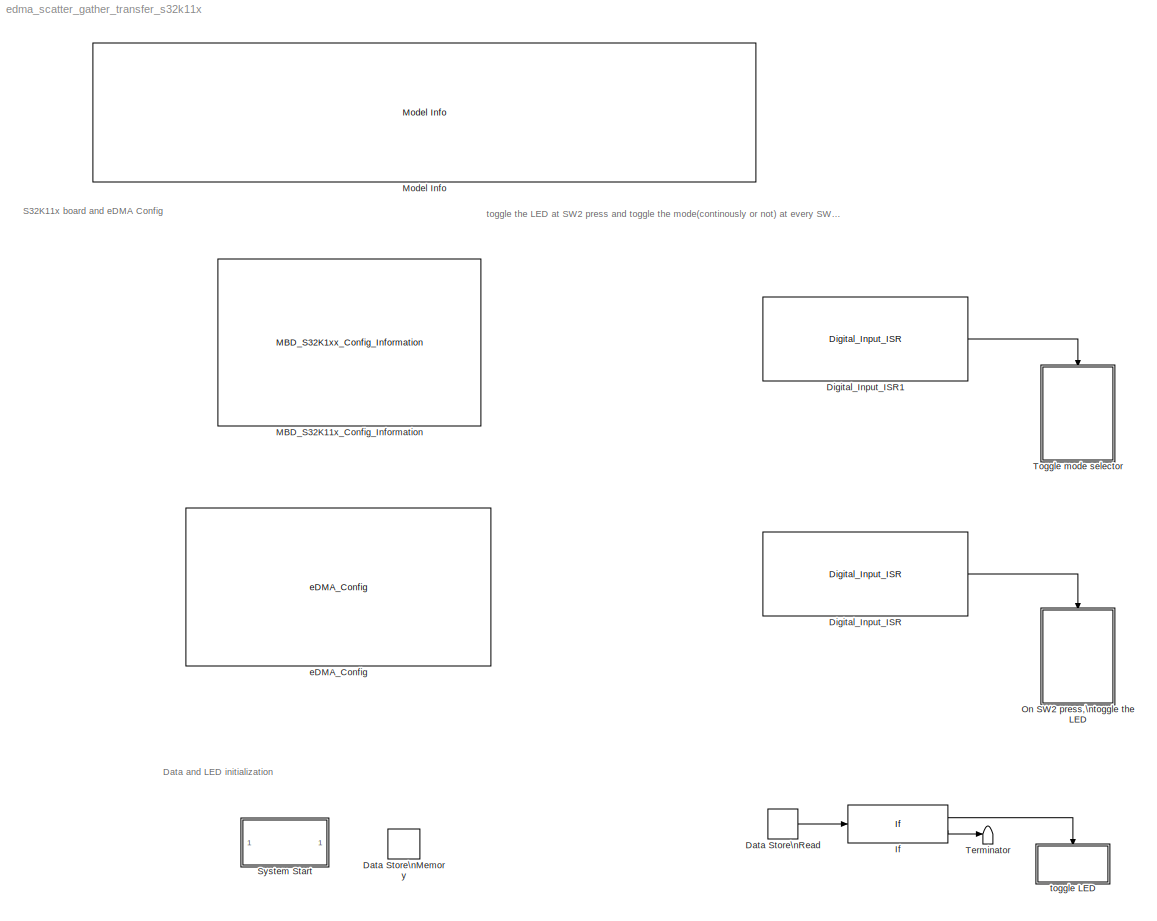
MODEL edma_scatter_gather_transfer_s32k11x
KIND model
CONFIG InitFcn = mbd_s32k_consistency_checks(bdroot(gcs));
BLOCK [DataStoreMemory] Data Store\nMemory
  DataStoreName = mode
  ReadBeforeWriteMsg = warning
  SID = 32
  ShowAdditionalParam = off
  WriteAfterReadMsg = warning
  WriteAfterWriteMsg = warning
BLOCK [DataStoreRead] Data Store\nRead
  DataStoreName = mode
  Ports = [0, 1]
  SID = 38
BLOCK [Reference] Digital_Input_ISR  REF=mbd_s32k1xx_ec_toolbox/GPIO Blocks/Digital_Input_ISR
  Ports = [0, 1]
  SID = 22
  SourceBlock = mbd_s32k1xx_ec_toolbox/GPIO Blocks/Digital_Input_ISR
  SourceType = gpi_s32k_isr
  gpio_pin = PTD3: [PTD3 | Port D I/O]
  irqc = on rising-edge
  prio = 3
BLOCK [Reference] Digital_Input_ISR1  REF=mbd_s32k1xx_ec_toolbox/GPIO Blocks/Digital_Input_ISR
  Ports = [0, 1]
  SID = 28
  SourceBlock = mbd_s32k1xx_ec_toolbox/GPIO Blocks/Digital_Input_ISR
  SourceType = gpi_s32k_isr
  gpio_pin = PTD5: [PTD5 | Port D I/O]
  irqc = on rising-edge
  prio = 3
BLOCK [If] If
  Ports = [1, 2]
  SID = 33
BLOCK [Reference] MBD_S32K11x_Config_Information  REF=mbd_s32k1xx_ec_toolbox/MBD_S32K1xx_Config_Information
  ADC_PcrCheckEnDis = on
  AMMCLIB_PcrCheckEnDis = on
  CMP_PcrCheckEnDis = on
  CSEc_PcrCheckEnDis = on
  ConfigParams_PcrCheckEnDis = on
  FM_PcrCheckEnDis = on
  FTM_Dual_Edge_Inputs_PcrCheckEnDis = on
  FTM_Hall_Sensor_Inputs_PcrCheckEnDis = on
  FTM_Input_Edge_Inputs_PcrCheckEnDis = on
  FTM_PWM_PcrCheckEnDis = on
  FTM_Quadrature_Inputs_PcrCheckEnDis = on
  FlexCAN_PcrCheckEnDis = on
  FlexIO_PcrCheckEnDis = on
  GPIO_InputPcrCheckEnDis = on
  GPIO_OutputPcrCheckEnDis = on
  LIN_PcrCheckEnDis = on
  LPI2C_PcrCheckEnDis = on
  LPSPI_PcrCheckEnDis = on
  LPTMR_PcrCheckEnDis = on
  LPUART_PcrCheckEnDis = on
  ModelRef_PcrCheckEnDis = on
  PDB0_PcrCheckEnDis = on
  PIT_PcrCheckEnDis = on
  Ports = []
  Profile_PcrCheckEnDis = on
  RTC_PcrCheckEnDis = on
  SBC_PcrCheckEnDis = on
  SID = 64
  SourceBlock = mbd_s32k1xx_ec_toolbox/MBD_S32K1xx_Config_Information
  SourceType = MBDTBX_EC_S32K
  WDOG_PcrCheckEnDis = on
  config_params = []
  disp_str = Target : S32K144-64KB_SRAM\nPackage : 100-pin\nSystem clock : 80 MHz\nXTAL clock : External 8 MHz\nCompiler : IAR\nTarget Type : FLASH\nDownload Code after build : off\nStep Tick Interrupt Priority : 15
  ds_import_enable = on
  eDMA_PcrCheckEnDis = on
  gcc_target_assemble_opts = -mcpu=cortex-m0plus -mthumb -g
  gcc_target_compile_opts = -mcpu=cortex-m0plus -mthumb -O1 -g -gstrict-dwarf
  gcc_target_default_lcf = on
  gcc_target_link_opts = -mcpu=cortex-m0plus -mthumb
  gcc_target_user_lcf = S32K116_17_flash.ld
  ghs_target_assemble_opts = -mcpu=cortexm0plus -mthumb -fsoft --gnu_asm
  ghs_target_compile_opts = -mcpu=cortexm0plus -mthumb -fsoft -Ogeneral -Wundef -Wimplicit-int -Wshadow -Wtrigraphs --no_commons --gnu_asm -gnu99 -gdwarf-2 -G
  ghs_target_default_lcf = on
  ghs_target_link_opts = -mcpu=cortexm0plus -mthumb -fsoft
  ghs_target_user_lcf = S32K116_17_flash.ld
  iar_target_assemble_opts = --thumb
  iar_target_compile_opts = --thumb -Ol -e --debug --dlib_config normal
  iar_target_default_lcf = on
  iar_target_link_opts = --no_exceptions --vfe --inline
  iar_target_user_lcf = S32K116_17_flash.icf
  mbdt_ver = 0
  mcu_steptick_prio = 3
  mcu_steptick_timer = LPIT Channel 0
  mcu_system_clock_freq = 40
  mcu_target_name = S32K116
  mcu_target_package = 48-LQFP
  mcu_target_sram_size = 17KB
  mcu_xtal_freq = External 40
  pil_download_enable = off
  pil_download_rate = 57600
  pil_opensda_drive = Custom
  pil_opensda_drive_custom = D
  pil_uart_instance = 0
  pil_uart_rx = PTA2: [LPUART0_RX | Receive]
  pil_uart_tx = PTA3: [LPUART0_TX | Transmit]
  rbl_com_port = Custom
  rbl_com_port_custom = COM1
  rbl_download_enable = on
  rbl_download_interface = OpenSDA
  rbl_restart_request = off
  rbl_start_delay = 5000
  target_compiler = GCC
  target_memory = FLASH
BLOCK [Reference] Model Info  REF=simulink/Model-Wide\nUtilities/Model Info
  DisplayStringWithTags = Model Name: %<ModelName>\n\nDescription: %<Description>
  Frame = off
  HorizontalTextAlignment = Left
  LeftAlignmentValue = 0.02
  MaskDisplayString = Model Name: edma_scatter_gather_transfer_s32k11x\\n\\nDescription: Press SW2 to trigger an eDMA transfer to PTOR register; this toggles PTE8,\\nthus blinking the blue LED.\\n\\nPress SW3 to trigger eDMA transfer continuously (at every step). Pressing it again will stop this process.\\n\\nVerification:\\nLED blink (blue) at every SW2 press.\\nLED blinks continuously at 0.5s after pressing SW3.
  Ports = []
  SID = 59
  SourceBlock = simulink/Model-Wide\nUtilities/Model Info
  SourceProductBaseCode = SL
  SourceProductName = Simulink
  SourceType = CMBlock
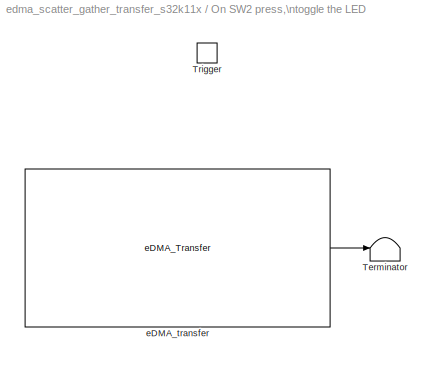
BLOCK [SubSystem] On SW2 press,\ntoggle the LED
  Ports = [0, 0, 0, 1]
  RequestExecContextInheritance = off
  SID = 23
  Variant = off
BLOCK [Terminator] On SW2 press,\ntoggle the LED/Terminator
  SID = 57
BLOCK [TriggerPort] On SW2 press,\ntoggle the LED/Trigger
  PortDimensions = 1
  Ports = []
  SID = 24
  StatesWhenEnabling = held
  TriggerType = function-call
  VariantControl = Variant
BLOCK [Reference] On SW2 press,\ntoggle the LED/eDMA_transfer  REF=mbd_s32k1xx_ec_toolbox/Core and System Blocks/DMA Blocks/eDMA_Transfer
  Ports = [0, 1]
  SID = 3
  SourceBlock = mbd_s32k1xx_ec_toolbox/Core and System Blocks/DMA Blocks/eDMA_Transfer
  SourceType = edma_s32k_transfer
  bytes_on_each_req = 4
  channel = 0
  dest_list = {0x0,0x0}
  dest_list_type = Select from a register list
  dest_periph1 = PTE
  dest_periph2 = ADC0
  dest_periph3 = ADC0
  dest_periph4 = ADC0
  dest_periph5 = ADC0
  dest_periph6 = ADC0
  dest_periph7 = ADC0
  dest_periph8 = ADC0
  dest_reg1 = PDOR
  dest_reg1_addr = 0x400FF100
  dest_reg1enable = on
  dest_reg1offset = 0xCh
  dest_reg2 = SC1A
  dest_reg2_addr = 0x4003B000
  dest_reg2enable = off
  dest_reg2offset = abch
  dest_reg3 = SC1A
  dest_reg3_addr = 0x4003B000
  dest_reg3enable = off
  dest_reg3offset = 0xabcd
  dest_reg4 = SC1A
  dest_reg4_addr = 0x4003B000
  dest_reg4enable = off
  dest_reg4offset = 0
  dest_reg5 = SC1A
  dest_reg5_addr = 0x4003B000
  dest_reg5enable = off
  dest_reg5offset = 0
  dest_reg6 = SC1A
  dest_reg6_addr = 0x4003B000
  dest_reg6enable = off
  dest_reg6offset = 0
  dest_reg7 = SC1A
  dest_reg7_addr = 0x4003B000
  dest_reg7enable = off
  dest_reg7offset = 0
  dest_reg8 = SC1A
  dest_reg8_addr = 0x4003B000
  dest_reg8enable = off
  dest_reg8offset = 0
  sg_struct_size = 32
  single_block_dest_type = Dest input is an address
  single_block_src_type = Src input is an address
  src_list = {256}
  src_list_type = Value list
  src_periph1 = ADC0
  src_periph2 = ADC0
  src_periph3 = ADC0
  src_periph4 = ADC0
  src_periph5 = ADC0
  src_periph6 = ADC0
  src_periph7 = ADC0
  src_periph8 = ADC0
  src_reg1 = SC1C
  src_reg1_addr = 0x4003B008
  src_reg1enable = on
  src_reg1offset = 0xABh
  src_reg2 = SC1A
  src_reg2_addr = 0x4003B000
  src_reg2enable = on
  src_reg2offset = 0
  src_reg3 = SC1A
  src_reg3_addr = 0x4003B000
  src_reg3enable = on
  src_reg3offset = 17
  src_reg4 = SC1A
  src_reg4_addr = 0x4003B000
  src_reg4enable = off
  src_reg4offset = 0
  src_reg5 = SC1A
  src_reg5_addr = 0x4003B000
  src_reg5enable = off
  src_reg5offset = 0
  src_reg6 = SC1A
  src_reg6_addr = 0x4003B000
  src_reg6enable = off
  src_reg6offset = 0
  src_reg7 = SC1A
  src_reg7_addr = 0x4003B000
  src_reg7enable = off
  src_reg7offset = 0
  src_reg8 = SC1A
  src_reg8_addr = 0x4003B000
  src_reg8enable = off
  src_reg8offset = 0
  transfer_mode = Scatter-Gather Transfer
  transfer_size = EDMA_TRANSFER_SIZE_4B
  transfer_type = EDMA_TRANSFER_MEM2PERIPH
BLOCK [SubSystem] System Start
  CopyFcn = cccopyfcn(gcb)
  OpenFcn = ccopenfcn('System Start Function')
  Ports = []
  RequestExecContextInheritance = off
  SID = 20
  Variant = off
BLOCK [Terminator] Terminator
  SID = 39
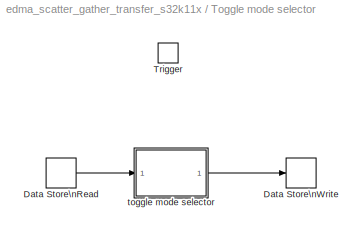
BLOCK [SubSystem] Toggle mode selector
  Ports = [0, 0, 0, 1]
  RequestExecContextInheritance = off
  SID = 41
  Variant = off
BLOCK [DataStoreRead] Toggle mode selector/Data Store\nRead
  DataStoreName = mode
  Ports = [0, 1]
  SID = 46
BLOCK [DataStoreWrite] Toggle mode selector/Data Store\nWrite
  DataStoreName = mode
  Ports = [1]
  SID = 40
BLOCK [TriggerPort] Toggle mode selector/Trigger
  PortDimensions = 1
  Ports = []
  SID = 53
  StatesWhenEnabling = held
  TriggerType = function-call
  VariantControl = Variant
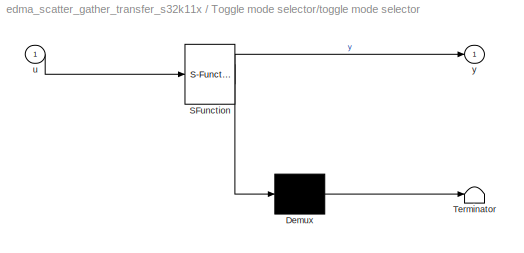
BLOCK [SubSystem] Toggle mode selector/toggle mode selector
  ErrorFcn = Stateflow.Translate.translate
  PermitHierarchicalResolution = ExplicitOnly
  Ports = [1, 1]
  RequestExecContextInheritance = off
  SFBlockType = MATLAB Function
  SID = 45
  TreatAsAtomicUnit = on
  Variant = off
BLOCK [Demux] Toggle mode selector/toggle mode selector/ Demux 
  Outputs = 1
  Ports = [1, 1]
  SID = 45::29
BLOCK [S-Function] Toggle mode selector/toggle mode selector/ SFunction 
  EnableBusSupport = off
  FunctionName = sf_sfun
  PortCounts = [1 2]
  Ports = [1, 2]
  SFcnIsStateOwnerBlock = off
  SFunctionDeploymentMode = off
  SID = 45::28
  Tag = Stateflow S-Function edma_scatter_gather_transfer_s32k11x 2
BLOCK [Terminator] Toggle mode selector/toggle mode selector/ Terminator 
  SID = 45::30
BLOCK [Inport] Toggle mode selector/toggle mode selector/u
  IconDisplay = Port number
  SID = 45::1
BLOCK [Outport] Toggle mode selector/toggle mode selector/y
  IconDisplay = Port number
  SID = 45::5
BLOCK [Reference] eDMA_Config  REF=mbd_s32k1xx_ec_toolbox/Core and System Blocks/DMA Blocks/eDMA_Config
  Ports = []
  Priority = 1
  SID = 1
  SourceBlock = mbd_s32k1xx_ec_toolbox/Core and System Blocks/DMA Blocks/eDMA_Config
  SourceType = edma_s32k_config
  arbitration = EDMA_ARBITRATION_FIXED_PRIORITY
  channel = 0
  channel0enable = on
  channel0priority = EDMA_CHN_DEFAULT_PRIORITY
  channel0requestsource = EDMA_REQ_DISABLED
  channel10enable = off
  channel10priority = EDMA_CHN_DEFAULT_PRIORITY
  channel10requestsource = EDMA_REQ_DISABLED
  channel11enable = off
  channel11priority = EDMA_CHN_DEFAULT_PRIORITY
  channel11requestsource = EDMA_REQ_DISABLED
  channel12enable = off
  channel12priority = EDMA_CHN_DEFAULT_PRIORITY
  channel12requestsource = EDMA_REQ_DISABLED
  channel13enable = off
  channel13priority = EDMA_CHN_DEFAULT_PRIORITY
  channel13requestsource = EDMA_REQ_DISABLED
  channel14enable = off
  channel14priority = EDMA_CHN_DEFAULT_PRIORITY
  channel14requestsource = EDMA_REQ_DISABLED
  channel15enable = off
  channel15priority = EDMA_CHN_DEFAULT_PRIORITY
  channel15requestsource = EDMA_REQ_DISABLED
  channel1enable = off
  channel1priority = EDMA_CHN_DEFAULT_PRIORITY
  channel1requestsource = EDMA_REQ_DISABLED
  channel2enable = off
  channel2priority = EDMA_CHN_DEFAULT_PRIORITY
  channel2requestsource = EDMA_REQ_DISABLED
  channel3enable = off
  channel3priority = EDMA_CHN_DEFAULT_PRIORITY
  channel3requestsource = EDMA_REQ_DISABLED
  channel4enable = off
  channel4priority = EDMA_CHN_DEFAULT_PRIORITY
  channel4requestsource = EDMA_REQ_DISABLED
  channel5enable = off
  channel5priority = EDMA_CHN_DEFAULT_PRIORITY
  channel5requestsource = EDMA_REQ_DISABLED
  channel6enable = off
  channel6priority = EDMA_CHN_DEFAULT_PRIORITY
  channel6requestsource = EDMA_REQ_DISABLED
  channel7enable = off
  channel7priority = EDMA_CHN_DEFAULT_PRIORITY
  channel7requestsource = EDMA_REQ_DISABLED
  channel8enable = off
  channel8priority = EDMA_CHN_DEFAULT_PRIORITY
  channel8requestsource = EDMA_REQ_DISABLED
  channel9enable = off
  channel9priority = EDMA_CHN_DEFAULT_PRIORITY
  channel9requestsource = EDMA_REQ_DISABLED
  channel_advanced_checkbox = on
  halt_on_error = false
  show_advanced_tab = on
  show_enabled = on
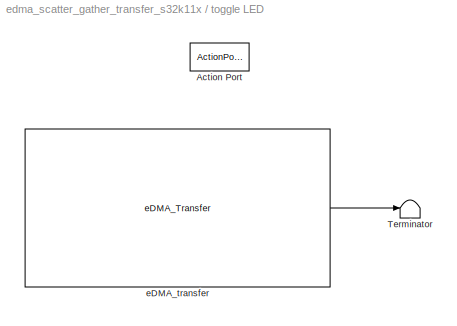
BLOCK [SubSystem] toggle LED
  Ports = [0, 0, 0, 0, 0, 0, 0, 1]
  RequestExecContextInheritance = off
  SID = 34
  TreatAsAtomicUnit = on
  Variant = off
BLOCK [ActionPort] toggle LED/Action Port
  SID = 36
BLOCK [Terminator] toggle LED/Terminator
  SID = 58
BLOCK [Reference] toggle LED/eDMA_transfer  REF=mbd_s32k1xx_ec_toolbox/Core and System Blocks/DMA Blocks/eDMA_Transfer
  Ports = [0, 1]
  SID = 31
  SourceBlock = mbd_s32k1xx_ec_toolbox/Core and System Blocks/DMA Blocks/eDMA_Transfer
  SourceType = edma_s32k_transfer
  bytes_on_each_req = 4
  channel = 0
  dest_list = {PTD_BASE + 0xc, 0x400FF0CC}
  dest_list_type = Select from a register list
  dest_periph1 = PTE
  dest_periph2 = ADC0
  dest_periph3 = ADC0
  dest_periph4 = ADC0
  dest_periph5 = ADC0
  dest_periph6 = ADC0
  dest_periph7 = ADC0
  dest_periph8 = ADC0
  dest_reg1 = PDOR
  dest_reg1_addr = 0x400FF100
  dest_reg1enable = on
  dest_reg1offset = 0xCh
  dest_reg2 = SC1A
  dest_reg2_addr = 0x4003B000
  dest_reg2enable = off
  dest_reg2offset = abch
  dest_reg3 = SC1A
  dest_reg3_addr = 0x4003B000
  dest_reg3enable = off
  dest_reg3offset = 0xabcd
  dest_reg4 = SC1A
  dest_reg4_addr = 0x4003B000
  dest_reg4enable = off
  dest_reg4offset = 0
  dest_reg5 = SC1A
  dest_reg5_addr = 0x4003B000
  dest_reg5enable = off
  dest_reg5offset = 0
  dest_reg6 = SC1A
  dest_reg6_addr = 0x4003B000
  dest_reg6enable = off
  dest_reg6offset = 0
  dest_reg7 = SC1A
  dest_reg7_addr = 0x4003B000
  dest_reg7enable = off
  dest_reg7offset = 0
  dest_reg8 = SC1A
  dest_reg8_addr = 0x4003B000
  dest_reg8enable = off
  dest_reg8offset = 0
  sg_struct_size = 32
  single_block_dest_type = Dest input is an address
  single_block_src_type = Src input is an address
  src_list = {256}
  src_list_type = Value list
  src_periph1 = ADC0
  src_periph2 = ADC0
  src_periph3 = ADC0
  src_periph4 = ADC0
  src_periph5 = ADC0
  src_periph6 = ADC0
  src_periph7 = ADC0
  src_periph8 = ADC0
  src_reg1 = SC1C
  src_reg1_addr = 0x4003B008
  src_reg1enable = on
  src_reg1offset = 0xABh
  src_reg2 = SC1A
  src_reg2_addr = 0x4003B000
  src_reg2enable = on
  src_reg2offset = 0
  src_reg3 = SC1A
  src_reg3_addr = 0x4003B000
  src_reg3enable = on
  src_reg3offset = 17
  src_reg4 = SC1A
  src_reg4_addr = 0x4003B000
  src_reg4enable = off
  src_reg4offset = 0
  src_reg5 = SC1A
  src_reg5_addr = 0x4003B000
  src_reg5enable = off
  src_reg5offset = 0
  src_reg6 = SC1A
  src_reg6_addr = 0x4003B000
  src_reg6enable = off
  src_reg6offset = 0
  src_reg7 = SC1A
  src_reg7_addr = 0x4003B000
  src_reg7enable = off
  src_reg7offset = 0
  src_reg8 = SC1A
  src_reg8_addr = 0x4003B000
  src_reg8enable = off
  src_reg8offset = 0
  transfer_mode = Scatter-Gather Transfer
  transfer_size = EDMA_TRANSFER_SIZE_4B
  transfer_type = EDMA_TRANSFER_MEM2PERIPH
ANNOTATION (root): Data and LED initialization
ANNOTATION (root): S32K11x board and eDMA Config
ANNOTATION (root): toggle the LED at SW2 press and toggle the mode(continously or not) at every SW3 press
LINE Data Store\nRead:1 -> If:1
LINE Digital_Input_ISR1:1 -> Toggle mode selector:trigger
LINE Digital_Input_ISR:1 -> On SW2 press,\ntoggle the LED:trigger
LINE If:1 -> toggle LED:ifaction
LINE If:2 -> Terminator:1
LINE On SW2 press,\ntoggle the LED/eDMA_transfer:1 -> On SW2 press,\ntoggle the LED/Terminator:1
LINE Toggle mode selector/Data Store\nRead:1 -> Toggle mode selector/toggle mode selector:1
LINE Toggle mode selector/toggle mode selector/ Demux :1 -> Toggle mode selector/toggle mode selector/ Terminator :1
LINE Toggle mode selector/toggle mode selector/ SFunction :1 -> Toggle mode selector/toggle mode selector/ Demux :1
LINE Toggle mode selector/toggle mode selector/ SFunction :2 -> Toggle mode selector/toggle mode selector/y:1
LINE Toggle mode selector/toggle mode selector/u:1 -> Toggle mode selector/toggle mode selector/ SFunction :1
LINE Toggle mode selector/toggle mode selector:1 -> Toggle mode selector/Data Store\nWrite:1
LINE toggle LED/eDMA_transfer:1 -> toggle LED/Terminator:1
CHART Toggle mode selector/toggle mode selector states=1 transitions=1
  STATE_LABEL 'eML_blk_kernel()'
